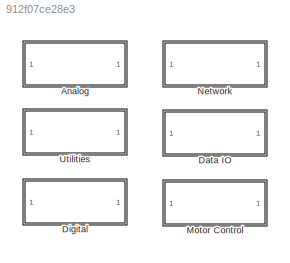
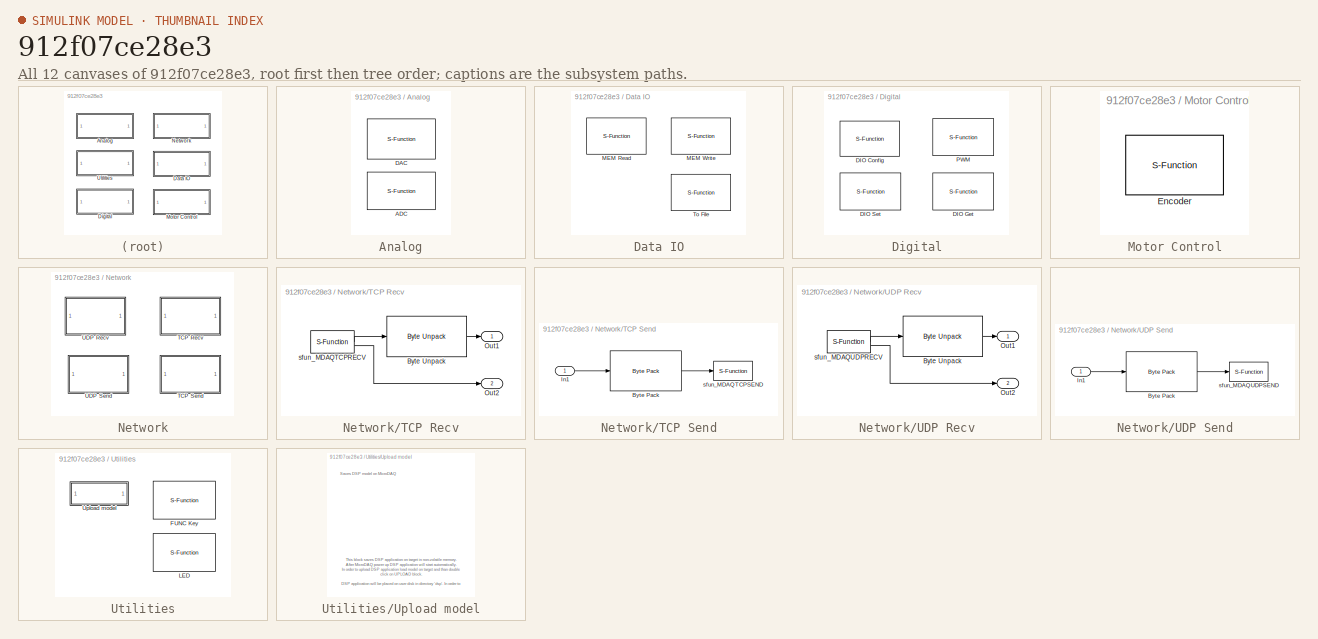
[diagram: thumbnail index - all 12 canvases of the model, root first then tree order]
MODEL slx_912f07ce28e3
KIND library
CONFIG AbsTol = auto
CONFIG EnableMultiTasking = off
CONFIG FixedStep = auto
CONFIG MaxStep = auto
CONFIG MinStep = auto
CONFIG RelTol = 1e-3
CONFIG SampleTimeConstraint = Unconstrained
CONFIG SolverName = ode45
CONFIG StartTime = 0.0
CONFIG StopTime = 10.0
BLOCK [SubSystem] Analog
BLOCK [S-Function] Analog/ADC
  EnableBusSupport = off
  FunctionName = sfun_MDAQADC
  Parameters = pChannel, pChannelCount, pRange, pMode, pAveraging, SampleTime
  SFcnIsStateOwnerBlock = off
  SFunctionDeploymentMode = off
BLOCK [S-Function] Analog/DAC
  EnableBusSupport = off
  FunctionName = sfun_MDAQDAC
  Parameters = pChannel, chCount, pRange, pInitValue, pTermValue, pUseInitTerm, SampleTime
  SFcnIsStateOwnerBlock = off
  SFunctionDeploymentMode = off
BLOCK [SubSystem] Data IO
BLOCK [S-Function] Data IO/MEM Read 
  EnableBusSupport = off
  FunctionName = sfun_MDAQMEMRD
  Parameters = pMemAddr, pArraySize, pVectorSize, pPeriodic, SampleTime
  SFcnIsStateOwnerBlock = off
  SFunctionDeploymentMode = off
BLOCK [S-Function] Data IO/MEM Write  
  EnableBusSupport = off
  FunctionName = sfun_MDAQMEMRW
  Parameters = pMemAddr, pArraySize, pVectorSize, pOverwrite, SampleTime
  SFcnIsStateOwnerBlock = off
  SFunctionDeploymentMode = off
BLOCK [S-Function] Data IO/To File
  EnableBusSupport = off
  FunctionName = sfun_TOFILE
  Parameters = pFileName, pMode, pBufSize, pVecSize, pType, SampleTime
  SFcnIsStateOwnerBlock = off
  SFunctionDeploymentMode = off
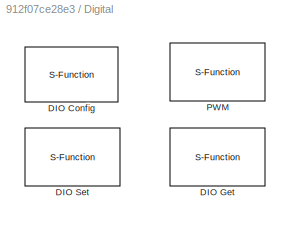
BLOCK [SubSystem] Digital
BLOCK [S-Function] Digital/DIO Config
  EnableBusSupport = off
  FunctionName = sfun_MDAQDIOCONF
  Parameters = SParameter1, SParameter2, SParameter3, SParameter4, SParameter5, SParameter6, SParameter7, SParameter8, SParameter9, SParameter10
  SFcnIsStateOwnerBlock = off
  SFunctionDeploymentMode = off
BLOCK [S-Function] Digital/DIO Get
  EnableBusSupport = off
  FunctionName = sfun_MDAQDIOGET
  Parameters = pDIOpin, SampleTime
  SFcnIsStateOwnerBlock = off
  SFunctionDeploymentMode = off
BLOCK [S-Function] Digital/DIO Set
  EnableBusSupport = off
  FunctionName = sfun_MDAQDIOSET
  Parameters = pDIOpin, pDIOdir, pDIOinitValue, pDIOtermValue SampleTime
  SFcnIsStateOwnerBlock = off
  SFunctionDeploymentMode = off
BLOCK [S-Function] Digital/PWM
  EnableBusSupport = off
  FunctionName = sfun_MDAQPWM
  Parameters = pModule, pPeriod, pPolarity, SampleTime
  SFcnIsStateOwnerBlock = off
  SFunctionDeploymentMode = off
BLOCK [SubSystem] Motor Control
BLOCK [S-Function] Motor Control/Encoder
  EnableBusSupport = off
  FunctionName = sfun_MDAQQEP
  Parameters = pChannel, SampleTime
  SFcnIsStateOwnerBlock = off
  SFunctionDeploymentMode = off
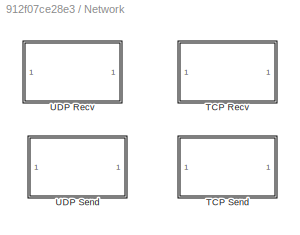
BLOCK [SubSystem] Network
BLOCK [SubSystem] Network/TCP Recv
BLOCK [Reference] Network/TCP Recv/Byte Unpack  REF=etargetslib/Byte Unpack
  SourceBlock = etargetslib/Byte Unpack
  SourceType = Byte Unpack
BLOCK [Outport] Network/TCP Recv/Out1
BLOCK [Outport] Network/TCP Recv/Out2
  Port = 2
BLOCK [S-Function] Network/TCP Recv/sfun_MDAQTCPRECV
  EnableBusSupport = off
  FunctionName = sfun_MDAQTCPRECV
  Parameters = IPAddr, Port, Blocking, Timeout, Protocol, Size, SampleTime
  SFcnIsStateOwnerBlock = off
  SFunctionDeploymentMode = off
BLOCK [SubSystem] Network/TCP Send
BLOCK [Reference] Network/TCP Send/Byte Pack  REF=etargetslib/Byte Pack
  SourceBlock = etargetslib/Byte Pack
  SourceType = Byte pack
BLOCK [Inport] Network/TCP Send/In1
  PortDimensions = SizePack
BLOCK [S-Function] Network/TCP Send/sfun_MDAQTCPSEND
  EnableBusSupport = off
  FunctionName = sfun_MDAQTCPSEND
  Parameters = IPAddr, Port, Blocking, Timeout, Protocol, Size, SampleTime
  SFcnIsStateOwnerBlock = off
  SFunctionDeploymentMode = off
BLOCK [SubSystem] Network/UDP Recv
BLOCK [Reference] Network/UDP Recv/Byte Unpack  REF=etargetslib/Byte Unpack
  SourceBlock = etargetslib/Byte Unpack
  SourceType = Byte Unpack
BLOCK [Outport] Network/UDP Recv/Out1
BLOCK [Outport] Network/UDP Recv/Out2
  Port = 2
BLOCK [S-Function] Network/UDP Recv/sfun_MDAQUDPRECV
  EnableBusSupport = off
  FunctionName = sfun_MDAQUDPRECV
  Parameters = IPAddr, Port, Blocking, Timeout, Protocol, Size, SampleTime
  SFcnIsStateOwnerBlock = off
  SFunctionDeploymentMode = off
BLOCK [SubSystem] Network/UDP Send
BLOCK [Reference] Network/UDP Send/Byte Pack  REF=etargetslib/Byte Pack
  SourceBlock = etargetslib/Byte Pack
  SourceType = Byte pack
BLOCK [Inport] Network/UDP Send/In1
  PortDimensions = SizePack
BLOCK [S-Function] Network/UDP Send/sfun_MDAQUDPSEND
  EnableBusSupport = off
  FunctionName = sfun_MDAQUDPSEND
  Parameters = IPAddr, Port, Blocking, Timeout, Protocol, Size, SampleTime
  SFcnIsStateOwnerBlock = off
  SFunctionDeploymentMode = off
BLOCK [SubSystem] Utilities
BLOCK [S-Function] Utilities/FUNC Key
  EnableBusSupport = off
  FunctionName = sfun_MDAQFNCKEY
  Parameters = pDIOFuncKey, SampleTime
  SFcnIsStateOwnerBlock = off
  SFunctionDeploymentMode = off
BLOCK [S-Function] Utilities/LED
  EnableBusSupport = off
  FunctionName = sfun_MDAQLED
  Parameters = SParameter1
  SFcnIsStateOwnerBlock = off
  SFunctionDeploymentMode = off
BLOCK [SubSystem] Utilities/Upload model
  OpenFcn = mlink_download('', getpref('microdaq','TargetRoot'), 1)
ANNOTATION Utilities/Upload model: Saves DSP model on MicroDAQ
ANNOTATION Utilities/Upload model: This block saves DSP application on target in non-volatile memory. After MicroDAQ power up DSP application will start automatically. In order to upload DSP application load model on target and than double click on UPLOAD block. DSP application will be placed on user disk in directory 'dsp'. In order to turn of autostart of DSP application connect MicroDAQ with USB cable and delete 'dsp-firmware.ou...<+27ch>
LINE Network/TCP Recv/Byte Unpack:1 -> Network/TCP Recv/Out1:1
LINE Network/TCP Recv/sfun_MDAQTCPRECV:1 -> Network/TCP Recv/Byte Unpack:1
LINE Network/TCP Recv/sfun_MDAQTCPRECV:2 -> Network/TCP Recv/Out2:1
LINE Network/TCP Send/Byte Pack:1 -> Network/TCP Send/sfun_MDAQTCPSEND:1
LINE Network/TCP Send/In1:1 -> Network/TCP Send/Byte Pack:1
LINE Network/UDP Recv/Byte Unpack:1 -> Network/UDP Recv/Out1:1
LINE Network/UDP Recv/sfun_MDAQUDPRECV:1 -> Network/UDP Recv/Byte Unpack:1
LINE Network/UDP Recv/sfun_MDAQUDPRECV:2 -> Network/UDP Recv/Out2:1
LINE Network/UDP Send/Byte Pack:1 -> Network/UDP Send/sfun_MDAQUDPSEND:1
LINE Network/UDP Send/In1:1 -> Network/UDP Send/Byte Pack:1
